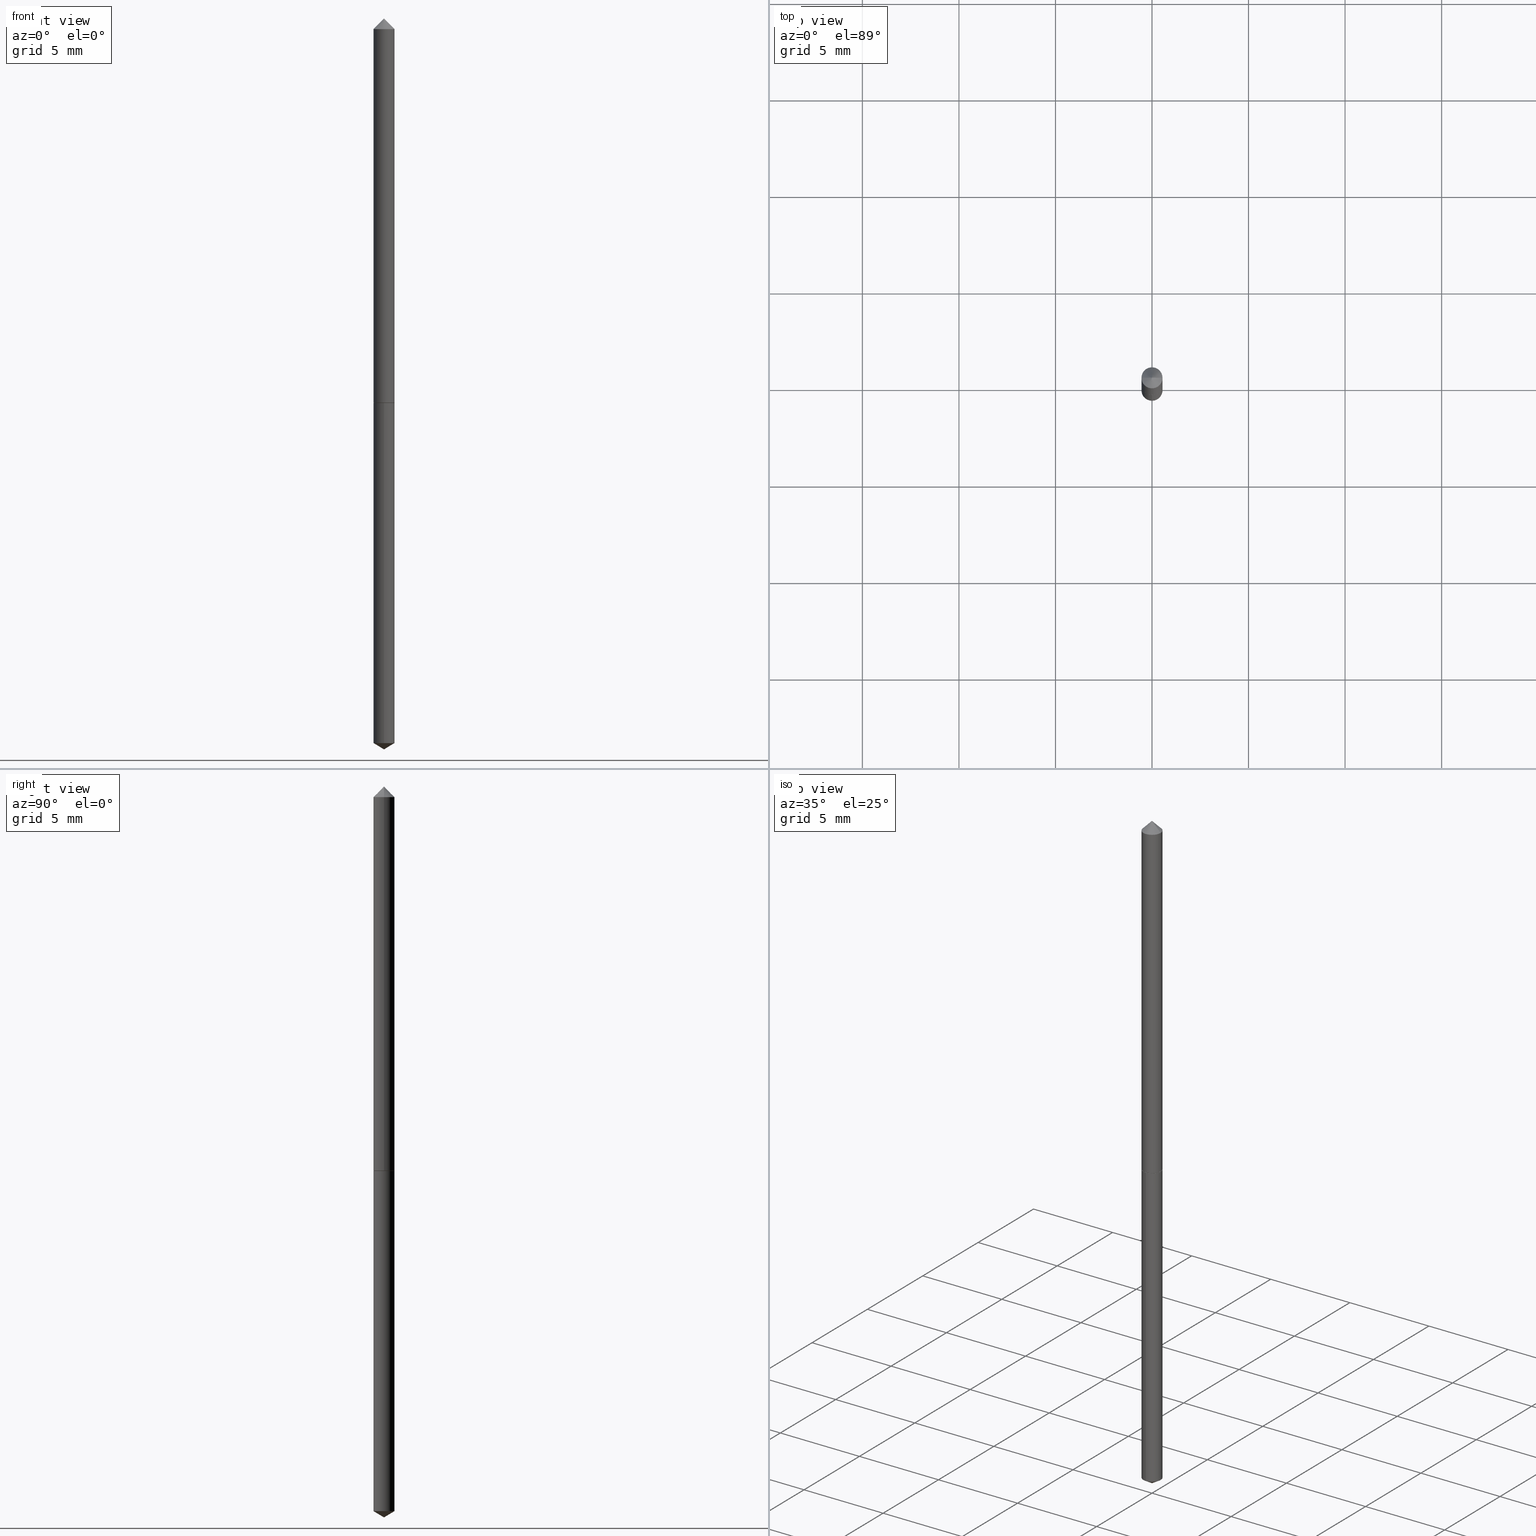
[diagram: canonical four-view strip — front | top / right | iso, engineering-drawing reading convention]
A machine part, canonical four-view strip (front | top / right | iso — engineering-drawing reading convention). The complete STEP part file that produces these views, byte-faithful:
ISO-10303-21;
HEADER;
FILE_DESCRIPTION (( 'STEP AP203' ),
    '1' );
FILE_NAME ('51057.STEP',
    '2024-04-22T18:20:26',
    ( '' ),
    ( '' ),
    'SwSTEP 2.0',
    'SolidWorks 2023',
    '' );
FILE_SCHEMA (( 'CONFIG_CONTROL_DESIGN' ));
ENDSEC;

DATA;
#1 = CONICAL_SURFACE ( 'NONE', #139, 0.02150000000000000522, 0.7853981633974452814 ) ;
#2 = EDGE_LOOP ( 'NONE', ( #50, #119 ) ) ;
#3 = EDGE_CURVE ( 'NONE', #271, #77, #133, .T. ) ;
#4 = ORIENTED_EDGE ( 'NONE', *, *, #278, .T. ) ;
#5 = DIRECTION ( 'NONE',  ( 1.000000000000000000, -6.982962677686265922E-15, 4.876176775795935232E-29 ) ) ;
#6 = CIRCLE ( 'NONE', #63, 0.02150000000000000175 ) ;
#7 = FACE_OUTER_BOUND ( 'NONE', #18, .T. ) ;
#8 = ADVANCED_FACE ( 'NONE', ( #86 ), #116, .T. ) ;
#9 = DIRECTION ( 'NONE',  ( 2.445468806185136597E-29, -3.491481338843145583E-15, -1.000000000000000000 ) ) ;
#10 = CARTESIAN_POINT ( 'NONE',  ( 1.938034028901720955E-29, -2.766998961033193203E-15, -0.7925000000000000933 ) ) ;
#11 = VECTOR ( 'NONE', #30, 39.37007874015748143 ) ;
#12 = CARTESIAN_POINT ( 'NONE',  ( 7.642090019328602662E-31, -1.091087918388490267E-16, -0.03125000000000020817 ) ) ;
#13 = CARTESIAN_POINT ( 'NONE',  ( 0.02150000000000005726, -1.501336975702551248E-16, 1.048378006796128830E-30 ) ) ;
#14 = VERTEX_POINT ( 'NONE', #336 ) ;
#15 = DIRECTION ( 'NONE',  ( -6.982962677686265922E-15, -1.000000000000000000, 0.000000000000000000 ) ) ;
#16 = AXIS2_PLACEMENT_3D ( 'NONE', #291, #183, #155 ) ;
#17 = DIRECTION ( 'NONE',  ( 0.7071067811865453523, -7.319954787623248157E-15, -0.7071067811865496822 ) ) ;
#18 = EDGE_LOOP ( 'NONE', ( #29, #355, #203 ) ) ;
#19 = AXIS2_PLACEMENT_3D ( 'NONE', #265, #295, #204 ) ;
#20 = APPROVAL_ROLE ( '' ) ;
#21 = DIRECTION ( 'NONE',  ( -2.445468806185136877E-29, 3.491481338843145188E-15, 1.000000000000000000 ) ) ;
#22 = EDGE_CURVE ( 'NONE', #14, #172, #62, .T. ) ;
#23 = SECURITY_CLASSIFICATION_LEVEL ( 'unclassified' ) ;
#24 = EDGE_LOOP ( 'NONE', ( #44, #202, #257, #282 ) ) ;
#25 = PERSON_AND_ORGANIZATION_ROLE ( 'creator' ) ;
#26 = ORIENTED_EDGE ( 'NONE', *, *, #66, .T. ) ;
#27 =( GEOMETRIC_REPRESENTATION_CONTEXT ( 3 ) GLOBAL_UNCERTAINTY_ASSIGNED_CONTEXT ( ( #356 ) ) GLOBAL_UNIT_ASSIGNED_CONTEXT ( ( #190, #217, #162 ) ) REPRESENTATION_CONTEXT ( 'NONE', 'WORKASPACE' ) );
#28 = CC_DESIGN_APPROVAL ( #345, ( #314 ) ) ;
#29 = ORIENTED_EDGE ( 'NONE', *, *, #290, .F. ) ;
#30 = DIRECTION ( 'NONE',  ( -0.7071067811866471597, 7.493145998870713881E-15, 0.7071067811864479857 ) ) ;
#31 = DIRECTION ( 'NONE',  ( 1.000000000000000000, -6.982962677686276966E-15, 0.000000000000000000 ) ) ;
#32 = EDGE_CURVE ( 'NONE', #334, #247, #340, .T. ) ;
#33 = AXIS2_PLACEMENT_3D ( 'NONE', #236, #349, #184 ) ;
#34 = CARTESIAN_POINT ( 'NONE',  ( 5.541061362502329399E-29, 2.389244486334888463E-15, -0.7930000000000000382 ) ) ;
#35 = CARTESIAN_POINT ( 'NONE',  ( -9.261350798568997351E-28, 1.322177874175488400E-13, 37.87007874015748143 ) ) ;
#36 = FACE_OUTER_BOUND ( 'NONE', #326, .T. ) ;
#37 = EDGE_CURVE ( 'NONE', #172, #70, #177, .T. ) ;
#38 = DIRECTION ( 'NONE',  ( -0.7071067811865453523, 2.468850131082234184E-15, -0.7071067811865496822 ) ) ;
#39 = DIRECTION ( 'NONE',  ( -2.445557048998981486E-29, 3.491354970111250407E-15, 1.000000000000000000 ) ) ;
#40 = MANIFOLD_SOLID_BREP ( 'Body-Move/Copy2[1]', #101 ) ;
#41 = DIRECTION ( 'NONE',  ( -6.982962677686265922E-15, -1.000000000000000000, 6.353134868986658336E-15 ) ) ;
#42 = ADVANCED_FACE ( 'NONE', ( #310 ), #147, .T. ) ;
#43 = CIRCLE ( 'NONE', #19, 0.02150000000000000522 ) ;
#44 = ORIENTED_EDGE ( 'NONE', *, *, #47, .F. ) ;
#45 = DIRECTION ( 'NONE',  ( -2.445468806185136877E-29, 3.491481338843145188E-15, 1.000000000000000000 ) ) ;
#46 = APPROVAL_DATE_TIME ( #87, #345 ) ;
#47 = EDGE_CURVE ( 'NONE', #14, #334, #288, .T. ) ;
#48 = CALENDAR_DATE ( 2024, 22, 4 ) ;
#49 = AXIS2_PLACEMENT_3D ( 'NONE', #318, #98, #124 ) ;
#50 = ORIENTED_EDGE ( 'NONE', *, *, #307, .F. ) ;
#51 = LOCAL_TIME ( 14, 20, 26.00000000000000000, #52 ) ;
#52 = COORDINATED_UNIVERSAL_TIME_OFFSET ( 5, 0, .BEHIND. ) ;
#53 = ORIENTED_EDGE ( 'NONE', *, *, #307, .T. ) ;
#54 = ORIENTED_EDGE ( 'NONE', *, *, #143, .F. ) ;
#55 = ADVANCED_FACE ( 'NONE', ( #113 ), #293, .T. ) ;
#56 = PERSON_AND_ORGANIZATION ( #252, #251 ) ;
#57 = DIRECTION ( 'NONE',  ( -2.445557048998981486E-29, 3.491354970111250407E-15, 1.000000000000000000 ) ) ;
#58 = VECTOR ( 'NONE', #275, 39.37007874015748143 ) ;
#59 = CARTESIAN_POINT ( 'NONE',  ( -0.02150000000000010236, -2.614232272844770738E-15, -0.7925000000000000933 ) ) ;
#60 = CARTESIAN_POINT ( 'NONE',  ( 7.642090019328602662E-31, -1.091087918388490267E-16, -0.03125000000000020817 ) ) ;
#61 = FACE_OUTER_BOUND ( 'NONE', #2, .T. ) ;
#62 = CIRCLE ( 'NONE', #319, 0.02100000000000006375 ) ;
#63 = AXIS2_PLACEMENT_3D ( 'NONE', #188, #74, #41 ) ;
#64 = CARTESIAN_POINT ( 'NONE',  ( 3.636672660117026275E-29, -5.192029584836672026E-15, -1.487081496690907834 ) ) ;
#65 = DIRECTION ( 'NONE',  ( -6.982962677686265922E-15, -1.000000000000000000, 0.000000000000000000 ) ) ;
#66 = EDGE_CURVE ( 'NONE', #88, #312, #266, .T. ) ;
#67 = CYLINDRICAL_SURFACE ( 'NONE', #313, 0.02150000000000005726 ) ;
#68 = CLOSED_SHELL ( 'NONE', ( #8, #330, #302, #272, #150, #243, #97 ) ) ;
#69 = CARTESIAN_POINT ( 'NONE',  ( 0.000000000000000000, 0.000000000000000000, 0.000000000000000000 ) ) ;
#70 = VERTEX_POINT ( 'NONE', #151 ) ;
#71 = CC_DESIGN_PERSON_AND_ORGANIZATION_ASSIGNMENT ( #359, #199, ( #314 ) ) ;
#72 = DIRECTION ( 'NONE',  ( 0.000000000000000000, 0.000000000000000000, 1.000000000000000000 ) ) ;
#73 = DESIGN_CONTEXT ( 'detailed design', #320, 'design' ) ;
#74 = DIRECTION ( 'NONE',  ( -2.445557048998981486E-29, 3.491354970111250407E-15, 1.000000000000000000 ) ) ;
#75 = DIRECTION ( 'NONE',  ( -2.445468806185136597E-29, 3.491481338843145583E-15, 1.000000000000000000 ) ) ;
#76 = CIRCLE ( 'NONE', #182, 0.02150000000000000175 ) ;
#77 = VERTEX_POINT ( 'NONE', #130 ) ;
#78 = LENGTH_MEASURE_WITH_UNIT ( LENGTH_MEASURE( 0.02539999999999999897 ), #106 );
#79 = ORIENTED_EDGE ( 'NONE', *, *, #283, .T. ) ;
#80 = EDGE_CURVE ( 'NONE', #88, #223, #152, .T. ) ;
#81 = CALENDAR_DATE ( 2024, 22, 4 ) ;
#82 = ORIENTED_EDGE ( 'NONE', *, *, #205, .T. ) ;
#83 = AXIS2_PLACEMENT_3D ( 'NONE', #69, #72, #248 ) ;
#84 = EDGE_LOOP ( 'NONE', ( #53, #276, #218, #353 ) ) ;
#85 = CARTESIAN_POINT ( 'NONE',  ( 1.939256763304813196E-29, -2.768744701702614312E-15, -0.7930000000000000382 ) ) ;
#86 = FACE_OUTER_BOUND ( 'NONE', #138, .T. ) ;
#87 = DATE_AND_TIME ( #81, #51 ) ;
#88 = VERTEX_POINT ( 'NONE', #125 ) ;
#89 = AXIS2_PLACEMENT_3D ( 'NONE', #35, #127, #209 ) ;
#90 = DIRECTION ( 'NONE',  ( -1.000000000000000000, 6.982962677686265922E-15, 0.000000000000000000 ) ) ;
#91 = CC_DESIGN_DATE_AND_TIME_ASSIGNMENT ( #222, #253, ( #126 ) ) ;
#92 = DIRECTION ( 'NONE',  ( -2.445557048998981766E-29, 3.491354970111250407E-15, 1.000000000000000000 ) ) ;
#93 = DIRECTION ( 'NONE',  ( -2.445468806185136597E-29, 3.491481338843145583E-15, 1.000000000000000000 ) ) ;
#94 = LOCAL_TIME ( 14, 20, 26.00000000000000000, #120 ) ;
#95 = PRODUCT ( '51057', '51057', '', ( #131 ) ) ;
#96 = LINE ( 'NONE', #322, #342 ) ;
#97 = ADVANCED_FACE ( 'NONE', ( #7 ), #1, .T. ) ;
#98 = DIRECTION ( 'NONE',  ( -2.445468806185136597E-29, 3.491481338843145583E-15, 1.000000000000000000 ) ) ;
#99 = CARTESIAN_POINT ( 'NONE',  ( 1.938034028901720955E-29, -2.766998961033193203E-15, -0.7925000000000000933 ) ) ;
#100 = EDGE_LOOP ( 'NONE', ( #148, #26, #212 ) ) ;
#101 = CLOSED_SHELL ( 'NONE', ( #333, #42, #111, #55, #136 ) ) ;
#102 = CC_DESIGN_DATE_AND_TIME_ASSIGNMENT ( #165, #258, ( #314 ) ) ;
#103 = AXIS2_PLACEMENT_3D ( 'NONE', #34, #207, #321 ) ;
#104 = DIRECTION ( 'NONE',  ( 1.000000000000000000, -6.982962677686265922E-15, 4.876176775795935232E-29 ) ) ;
#105 = EDGE_LOOP ( 'NONE', ( #197, #4, #338, #168 ) ) ;
#106 =( LENGTH_UNIT ( ) NAMED_UNIT ( * ) SI_UNIT ( $, .METRE. ) );
#107 = APPLICATION_PROTOCOL_DEFINITION ( 'international standard', 'config_control_design', 1994, #178 ) ;
#108 = CIRCLE ( 'NONE', #129, 0.02150000000000000175 ) ;
#109 = LINE ( 'NONE', #273, #347 ) ;
#110 = CC_DESIGN_APPROVAL ( #361, ( #193 ) ) ;
#111 = ADVANCED_FACE ( 'NONE', ( #36 ), #208, .T. ) ;
#112 = DATE_AND_TIME ( #337, #134 ) ;
#113 = FACE_OUTER_BOUND ( 'NONE', #105, .T. ) ;
#114 = CALENDAR_DATE ( 2024, 22, 4 ) ;
#115 = VERTEX_POINT ( 'NONE', #346 ) ;
#116 = CONICAL_SURFACE ( 'NONE', #328, 0.02150000000000000522, 0.7853981633974452814 ) ;
#117 = CARTESIAN_POINT ( 'NONE',  ( 7.642090019328602662E-31, -1.091087918388490267E-16, -0.03125000000000020817 ) ) ;
#118 = PERSON_AND_ORGANIZATION ( #252, #251 ) ;
#119 = ORIENTED_EDGE ( 'NONE', *, *, #22, .F. ) ;
#120 = COORDINATED_UNIVERSAL_TIME_OFFSET ( 5, 0, .BEHIND. ) ;
#121 = DIRECTION ( 'NONE',  ( -2.445468806185136597E-29, 3.491481338843145583E-15, 1.000000000000000000 ) ) ;
#122 = CARTESIAN_POINT ( 'NONE',  ( -0.02150000000000000522, -1.285287188247597701E-15, -0.03125000000000020817 ) ) ;
#123 = CC_DESIGN_PERSON_AND_ORGANIZATION_ASSIGNMENT ( #118, #303, ( #95 ) ) ;
#124 = DIRECTION ( 'NONE',  ( 1.000000000000000000, -6.982962677686276966E-15, 0.000000000000000000 ) ) ;
#125 = CARTESIAN_POINT ( 'NONE',  ( 3.668335573498472369E-29, -5.237032455166875807E-15, -1.500000000000000222 ) ) ;
#126 = PRODUCT_DEFINITION ( 'UNKNOWN', '', #193, #73 ) ;
#127 = DIRECTION ( 'NONE',  ( -2.445557048998981486E-29, 3.491354970111250407E-15, 1.000000000000000000 ) ) ;
#128 = CIRCLE ( 'NONE', #198, 0.02150000000000010236 ) ;
#129 = AXIS2_PLACEMENT_3D ( 'NONE', #263, #157, #65 ) ;
#130 = CARTESIAN_POINT ( 'NONE',  ( -1.501336975702353539E-16, -0.02150000000000277037, -0.7930000000000000382 ) ) ;
#131 = MECHANICAL_CONTEXT ( 'NONE', #178, 'mechanical' ) ;
#132 = DIMENSIONAL_EXPONENTS ( 1.000000000000000000, 0.000000000000000000, 0.000000000000000000, 0.000000000000000000, 0.000000000000000000, 0.000000000000000000, 0.000000000000000000 ) ;
#133 = CIRCLE ( 'NONE', #153, 0.02150000000000000175 ) ;
#134 = LOCAL_TIME ( 14, 20, 26.00000000000000000, #146 ) ;
#135 = CYLINDRICAL_SURFACE ( 'NONE', #174, 0.02150000000000005726 ) ;
#136 = ADVANCED_FACE ( 'NONE', ( #317 ), #267, .F. ) ;
#137 = FACE_OUTER_BOUND ( 'NONE', #308, .T. ) ;
#138 = EDGE_LOOP ( 'NONE', ( #170, #200, #189 ) ) ;
#139 = AXIS2_PLACEMENT_3D ( 'NONE', #12, #9, #90 ) ;
#140 = APPLICATION_PROTOCOL_DEFINITION ( 'international standard', 'config_control_design', 1994, #320 ) ;
#141 = ORIENTED_EDGE ( 'NONE', *, *, #3, .T. ) ;
#142 = CARTESIAN_POINT ( 'NONE',  ( 0.02150000000000010236, -2.917132658603448820E-15, -0.7925000000000000933 ) ) ;
#143 = EDGE_CURVE ( 'NONE', #247, #115, #269, .T. ) ;
#144 = PERSON_AND_ORGANIZATION ( #252, #251 ) ;
#145 = ORIENTED_EDGE ( 'NONE', *, *, #192, .F. ) ;
#146 = COORDINATED_UNIVERSAL_TIME_OFFSET ( 5, 0, .BEHIND. ) ;
#147 = CONICAL_SURFACE ( 'NONE', #246, 65.52281426577032164, 1.029744258676667190 ) ;
#148 = ORIENTED_EDGE ( 'NONE', *, *, #80, .F. ) ;
#149 = ORIENTED_EDGE ( 'NONE', *, *, #327, .T. ) ;
#150 = ADVANCED_FACE ( 'NONE', ( #351 ), #354, .T. ) ;
#151 = CARTESIAN_POINT ( 'NONE',  ( 0.02150000000000010236, -2.917132658603448820E-15, -0.7925000000000000933 ) ) ;
#152 = LINE ( 'NONE', #238, #240 ) ;
#153 = AXIS2_PLACEMENT_3D ( 'NONE', #364, #230, #220 ) ;
#154 = AXIS2_PLACEMENT_3D ( 'NONE', #358, #39, #211 ) ;
#155 = DIRECTION ( 'NONE',  ( -6.982962677686265922E-15, -1.000000000000000000, 6.353134868986658336E-15 ) ) ;
#156 = DIRECTION ( 'NONE',  ( -5.985567269335988611E-15, -0.8571673007021169965, 0.5150380749100462729 ) ) ;
#157 = DIRECTION ( 'NONE',  ( -2.445557048998981486E-29, 3.491354970111250407E-15, 1.000000000000000000 ) ) ;
#158 = AXIS2_PLACEMENT_3D ( 'NONE', #161, #75, #215 ) ;
#159 = FACE_OUTER_BOUND ( 'NONE', #84, .T. ) ;
#160 = DIRECTION ( 'NONE',  ( -2.445557048998981486E-29, 3.491354970111250407E-15, 1.000000000000000000 ) ) ;
#161 = CARTESIAN_POINT ( 'NONE',  ( 1.939256763304813196E-29, -2.768744701702614312E-15, -0.7930000000000000382 ) ) ;
#162 =( NAMED_UNIT ( * ) SI_UNIT ( $, .STERADIAN. ) SOLID_ANGLE_UNIT ( ) );
#163 = ORIENTED_EDGE ( 'NONE', *, *, #255, .T. ) ;
#164 = MANIFOLD_SOLID_BREP ( 'Body-Move/Copy2[2]', #68 ) ;
#165 = DATE_AND_TIME ( #114, #232 ) ;
#166 = CIRCLE ( 'NONE', #49, 0.02150000000000010236 ) ;
#167 = CC_DESIGN_PERSON_AND_ORGANIZATION_ASSIGNMENT ( #229, #284, ( #193 ) ) ;
#168 = ORIENTED_EDGE ( 'NONE', *, *, #3, .F. ) ;
#169 = APPROVAL_STATUS ( 'not_yet_approved' ) ;
#170 = ORIENTED_EDGE ( 'NONE', *, *, #316, .F. ) ;
#171 = PERSON_AND_ORGANIZATION ( #252, #251 ) ;
#172 = VERTEX_POINT ( 'NONE', #210 ) ;
#173 = COORDINATED_UNIVERSAL_TIME_OFFSET ( 5, 0, .BEHIND. ) ;
#174 = AXIS2_PLACEMENT_3D ( 'NONE', #301, #213, #104 ) ;
#175 = APPROVAL_PERSON_ORGANIZATION ( #56, #361, #20 ) ;
#176 = DIRECTION ( 'NONE',  ( -6.982962677686265922E-15, -1.000000000000000000, 3.468864327941494029E-15 ) ) ;
#177 = LINE ( 'NONE', #142, #237 ) ;
#178 = APPLICATION_CONTEXT ( 'configuration controlled 3d designs of mechanical parts and assemblies' ) ;
#179 = DIRECTION ( 'NONE',  ( -2.445468806185136597E-29, 3.491481338843145583E-15, 1.000000000000000000 ) ) ;
#180 = PLANE ( 'NONE',  #103 ) ;
#181 = EDGE_CURVE ( 'NONE', #223, #77, #96, .T. ) ;
#182 = AXIS2_PLACEMENT_3D ( 'NONE', #64, #160, #15 ) ;
#183 = DIRECTION ( 'NONE',  ( -2.445557048998981486E-29, 3.491354970111250407E-15, 1.000000000000000000 ) ) ;
#184 = DIRECTION ( 'NONE',  ( 6.982962677686265922E-15, 1.000000000000000000, -3.491354970111250407E-15 ) ) ;
#185 = CARTESIAN_POINT ( 'NONE',  ( 0.000000000000000000, 0.000000000000000000, 0.000000000000000000 ) ) ;
#186 = AXIS2_PLACEMENT_3D ( 'NONE', #10, #179, #31 ) ;
#187 = EDGE_CURVE ( 'NONE', #223, #312, #108, .T. ) ;
#188 = CARTESIAN_POINT ( 'NONE',  ( 1.939256763304813756E-29, -2.768744701702615101E-15, -0.7930000000000001492 ) ) ;
#189 = ORIENTED_EDGE ( 'NONE', *, *, #192, .T. ) ;
#190 =( CONVERSION_BASED_UNIT ( 'INCH', #78 ) LENGTH_UNIT ( ) NAMED_UNIT ( #132 ) );
#191 = ORIENTED_EDGE ( 'NONE', *, *, #341, .T. ) ;
#192 = EDGE_CURVE ( 'NONE', #115, #247, #43, .T. ) ;
#193 = PRODUCT_DEFINITION_FORMATION_WITH_SPECIFIED_SOURCE ( 'ANY', '', #95, .NOT_KNOWN. ) ;
#194 = CARTESIAN_POINT ( 'NONE',  ( 1.527666881884409041E-16, 0.02149999999999722966, -0.7930000000000002602 ) ) ;
#195 = CARTESIAN_POINT ( 'NONE',  ( -0.02150000000000010236, -2.614232272844770738E-15, -0.7925000000000000933 ) ) ;
#196 = ORIENTED_EDGE ( 'NONE', *, *, #66, .F. ) ;
#197 = ORIENTED_EDGE ( 'NONE', *, *, #283, .F. ) ;
#198 = AXIS2_PLACEMENT_3D ( 'NONE', #343, #93, #344 ) ;
#199 = PERSON_AND_ORGANIZATION_ROLE ( 'classification_officer' ) ;
#200 = ORIENTED_EDGE ( 'NONE', *, *, #290, .T. ) ;
#201 = CARTESIAN_POINT ( 'NONE',  ( -0.02150000000000005726, 1.527666881884219468E-16, -1.057571044404807502E-30 ) ) ;
#202 = ORIENTED_EDGE ( 'NONE', *, *, #22, .T. ) ;
#203 = ORIENTED_EDGE ( 'NONE', *, *, #143, .T. ) ;
#204 = DIRECTION ( 'NONE',  ( 1.000000000000000000, -6.982962677686265922E-15, 0.000000000000000000 ) ) ;
#205 = EDGE_CURVE ( 'NONE', #70, #334, #166, .T. ) ;
#206 = CARTESIAN_POINT ( 'NONE',  ( 1.527666881884579879E-16, 0.02149999999999722966, -0.7930000000000002602 ) ) ;
#207 = DIRECTION ( 'NONE',  ( -2.438088387897960049E-29, 3.491481338843145188E-15, 1.000000000000000000 ) ) ;
#208 = CONICAL_SURFACE ( 'NONE', #89, 65.52281426577032164, 1.029744258676667190 ) ;
#209 = DIRECTION ( 'NONE',  ( -6.982962677686265922E-15, -1.000000000000000000, 3.468864327941494029E-15 ) ) ;
#210 = CARTESIAN_POINT ( 'NONE',  ( 0.02100000000000006375, -2.915386917934026528E-15, -0.7930000000000000382 ) ) ;
#211 = DIRECTION ( 'NONE',  ( -6.982962677686265922E-15, -1.000000000000000000, 6.353134868986658336E-15 ) ) ;
#212 = ORIENTED_EDGE ( 'NONE', *, *, #187, .F. ) ;
#213 = DIRECTION ( 'NONE',  ( -2.445468806185136597E-29, 3.491481338843145583E-15, 1.000000000000000000 ) ) ;
#214 = PRODUCT_RELATED_PRODUCT_CATEGORY ( 'detail', '', ( #95 ) ) ;
#215 = DIRECTION ( 'NONE',  ( 1.000000000000000000, -6.982962677686265133E-15, 0.000000000000000000 ) ) ;
#216 = CARTESIAN_POINT ( 'NONE',  ( 1.527666881884579139E-16, 0.02149999999999481493, -1.487081496690907834 ) ) ;
#217 =( NAMED_UNIT ( * ) PLANE_ANGLE_UNIT ( ) SI_UNIT ( $, .RADIAN. ) );
#218 = ORIENTED_EDGE ( 'NONE', *, *, #205, .F. ) ;
#219 = APPROVAL_DATE_TIME ( #112, #221 ) ;
#220 = DIRECTION ( 'NONE',  ( -6.982962677686265922E-15, -1.000000000000000000, 6.353134868986658336E-15 ) ) ;
#221 = APPROVAL ( #309, 'UNSPECIFIED' ) ;
#222 = DATE_AND_TIME ( #311, #94 ) ;
#223 = VERTEX_POINT ( 'NONE', #323 ) ;
#224 = VECTOR ( 'NONE', #233, 39.37007874015748143 ) ;
#225 = APPROVAL_PERSON_ORGANIZATION ( #331, #345, #286 ) ;
#226 = DIRECTION ( 'NONE',  ( 2.445468806185136597E-29, -3.491481338843145583E-15, -1.000000000000000000 ) ) ;
#227 = APPROVAL_STATUS ( 'not_yet_approved' ) ;
#228 = ORIENTED_EDGE ( 'NONE', *, *, #32, .T. ) ;
#229 = PERSON_AND_ORGANIZATION ( #252, #251 ) ;
#230 = DIRECTION ( 'NONE',  ( -2.445557048998981486E-29, 3.491354970111250407E-15, 1.000000000000000000 ) ) ;
#231 = VECTOR ( 'NONE', #17, 39.37007874015748143 ) ;
#232 = LOCAL_TIME ( 14, 20, 26.00000000000000000, #173 ) ;
#233 = DIRECTION ( 'NONE',  ( 6.090539988449826556E-15, 0.8571673007021206603, 0.5150380749100402777 ) ) ;
#234 = CC_DESIGN_PERSON_AND_ORGANIZATION_ASSIGNMENT ( #171, #339, ( #193 ) ) ;
#235 = FACE_OUTER_BOUND ( 'NONE', #285, .T. ) ;
#236 = CARTESIAN_POINT ( 'NONE',  ( 1.939256763304813756E-29, -2.768744701702615101E-15, -0.7930000000000001492 ) ) ;
#237 = VECTOR ( 'NONE', #289, 39.37007874015748143 ) ;
#238 = CARTESIAN_POINT ( 'NONE',  ( 3.668195620395714927E-29, -5.237232875975661965E-15, -1.500000000000000222 ) ) ;
#239 = VECTOR ( 'NONE', #21, 39.37007874015748143 ) ;
#240 = VECTOR ( 'NONE', #156, 39.37007874015748143 ) ;
#241 = PRODUCT_DEFINITION_SHAPE ( 'NONE', 'NONE',  #126 ) ;
#242 = DIRECTION ( 'NONE',  ( -2.445468806185136597E-29, 3.491481338843145583E-15, 1.000000000000000000 ) ) ;
#243 = ADVANCED_FACE ( 'NONE', ( #235 ), #67, .T. ) ;
#244 = DIRECTION ( 'NONE',  ( 1.000000000000000000, -6.982962677686276966E-15, 0.000000000000000000 ) ) ;
#245 = LINE ( 'NONE', #194, #58 ) ;
#246 = AXIS2_PLACEMENT_3D ( 'NONE', #315, #57, #176 ) ;
#247 = VERTEX_POINT ( 'NONE', #122 ) ;
#248 = DIRECTION ( 'NONE',  ( 1.000000000000000000, 0.000000000000000000, 0.000000000000000000 ) ) ;
#249 = FACE_OUTER_BOUND ( 'NONE', #254, .T. ) ;
#250 = ORIENTED_EDGE ( 'NONE', *, *, #32, .F. ) ;
#251 = ORGANIZATION ( 'UNSPECIFIED', 'UNSPECIFIED', '' ) ;
#252 = PERSON ( 'UNSPECIFIED', 'UNSPECIFIED', 'UNSPECIFIED', ('UNSPECIFIED'), ('UNSPECIFIED'), ('UNSPECIFIED') ) ;
#253 = DATE_TIME_ROLE ( 'creation_date' ) ;
#254 = EDGE_LOOP ( 'NONE', ( #259, #79, #363, #360 ) ) ;
#255 = EDGE_CURVE ( 'NONE', #334, #70, #128, .T. ) ;
#256 = PERSON_AND_ORGANIZATION ( #252, #251 ) ;
#257 = ORIENTED_EDGE ( 'NONE', *, *, #37, .T. ) ;
#258 = DATE_TIME_ROLE ( 'classification_date' ) ;
#259 = ORIENTED_EDGE ( 'NONE', *, *, #187, .T. ) ;
#260 = APPROVAL_DATE_TIME ( #304, #361 ) ;
#261 = ORIENTED_EDGE ( 'NONE', *, *, #80, .T. ) ;
#262 = EDGE_LOOP ( 'NONE', ( #149, #141 ) ) ;
#263 = CARTESIAN_POINT ( 'NONE',  ( 3.636672660117026275E-29, -5.192029584836672026E-15, -1.487081496690907834 ) ) ;
#264 = AXIS2_PLACEMENT_3D ( 'NONE', #99, #277, #244 ) ;
#265 = CARTESIAN_POINT ( 'NONE',  ( 7.642090019328602662E-31, -1.091087918388490267E-16, -0.03125000000000020817 ) ) ;
#266 = LINE ( 'NONE', #294, #224 ) ;
#267 = PLANE ( 'NONE',  #33 ) ;
#268 = DIRECTION ( 'NONE',  ( 1.000000000000000000, -6.982962677686265922E-15, 0.000000000000000000 ) ) ;
#269 = CIRCLE ( 'NONE', #325, 0.02150000000000000522 ) ;
#270 = CYLINDRICAL_SURFACE ( 'NONE', #154, 0.02150000000000000175 ) ;
#271 = VERTEX_POINT ( 'NONE', #206 ) ;
#272 = ADVANCED_FACE ( 'NONE', ( #61 ), #180, .F. ) ;
#273 = CARTESIAN_POINT ( 'NONE',  ( -0.02150000000000000522, 4.102490573140573446E-17, -0.03125000000000020817 ) ) ;
#274 = CC_DESIGN_APPROVAL ( #221, ( #126 ) ) ;
#275 = DIRECTION ( 'NONE',  ( -2.445557048998981766E-29, 3.491354970111250407E-15, 1.000000000000000000 ) ) ;
#276 = ORIENTED_EDGE ( 'NONE', *, *, #47, .T. ) ;
#277 = DIRECTION ( 'NONE',  ( -2.445468806185136597E-29, 3.491481338843145583E-15, 1.000000000000000000 ) ) ;
#278 = EDGE_CURVE ( 'NONE', #312, #223, #76, .T. ) ;
#279 = CIRCLE ( 'NONE', #158, 0.02100000000000006375 ) ;
#280 = DIRECTION ( 'NONE',  ( 1.000000000000000000, -6.982962677686265133E-15, 0.000000000000000000 ) ) ;
#281 = APPROVAL_ROLE ( '' ) ;
#282 = ORIENTED_EDGE ( 'NONE', *, *, #255, .F. ) ;
#283 = EDGE_CURVE ( 'NONE', #312, #271, #245, .T. ) ;
#284 = PERSON_AND_ORGANIZATION_ROLE ( 'design_supplier' ) ;
#285 = EDGE_LOOP ( 'NONE', ( #250, #163, #191, #54 ) ) ;
#286 = APPROVAL_ROLE ( '' ) ;
#287 = CC_DESIGN_SECURITY_CLASSIFICATION ( #314, ( #193 ) ) ;
#288 = LINE ( 'NONE', #59, #11 ) ;
#289 = DIRECTION ( 'NONE',  ( 0.7071067811866471597, -2.468850131083299935E-15, 0.7071067811864479857 ) ) ;
#290 = EDGE_CURVE ( 'NONE', #299, #115, #352, .T. ) ;
#291 = CARTESIAN_POINT ( 'NONE',  ( 1.939256763304813756E-29, -2.768744701702615101E-15, -0.7930000000000001492 ) ) ;
#292 = APPROVAL_PERSON_ORGANIZATION ( #144, #221, #281 ) ;
#293 = CYLINDRICAL_SURFACE ( 'NONE', #16, 0.02150000000000000175 ) ;
#294 = CARTESIAN_POINT ( 'NONE',  ( 3.668336800721982452E-29, -5.237032455166875807E-15, -1.500000000000000222 ) ) ;
#295 = DIRECTION ( 'NONE',  ( -2.445468806185136597E-29, 3.491481338843145583E-15, 1.000000000000000000 ) ) ;
#296 = DIRECTION ( 'NONE',  ( -2.445468806185136597E-29, 3.491481338843145583E-15, 1.000000000000000000 ) ) ;
#297 = CC_DESIGN_PERSON_AND_ORGANIZATION_ASSIGNMENT ( #256, #25, ( #126 ) ) ;
#298 = CARTESIAN_POINT ( 'NONE',  ( 2.347073506771012975E-31, -3.457550711498345681E-17, -0.009750000000000065906 ) ) ;
#299 = VERTEX_POINT ( 'NONE', #298 ) ;
#300 = CONICAL_SURFACE ( 'NONE', #264, 0.02150000000000010236, 0.7853981633975891663 ) ;
#301 = CARTESIAN_POINT ( 'NONE',  ( 0.000000000000000000, 0.000000000000000000, 0.000000000000000000 ) ) ;
#302 = ADVANCED_FACE ( 'NONE', ( #159 ), #300, .T. ) ;
#303 = PERSON_AND_ORGANIZATION_ROLE ( 'design_owner' ) ;
#304 = DATE_AND_TIME ( #48, #348 ) ;
#305 = DIRECTION ( 'NONE',  ( -1.000000000000000000, 6.982962677686265922E-15, 0.000000000000000000 ) ) ;
#306 = SHAPE_DEFINITION_REPRESENTATION ( #241, #350 ) ;
#307 = EDGE_CURVE ( 'NONE', #172, #14, #279, .T. ) ;
#308 = EDGE_LOOP ( 'NONE', ( #82, #228, #145, #332 ) ) ;
#309 = APPROVAL_STATUS ( 'not_yet_approved' ) ;
#310 = FACE_OUTER_BOUND ( 'NONE', #100, .T. ) ;
#311 = CALENDAR_DATE ( 2024, 22, 4 ) ;
#312 = VERTEX_POINT ( 'NONE', #216 ) ;
#313 = AXIS2_PLACEMENT_3D ( 'NONE', #185, #296, #5 ) ;
#314 = SECURITY_CLASSIFICATION ( '', '', #23 ) ;
#315 = CARTESIAN_POINT ( 'NONE',  ( -9.261350798568997351E-28, 1.322177874175488400E-13, 37.87007874015748143 ) ) ;
#316 = EDGE_CURVE ( 'NONE', #299, #247, #109, .T. ) ;
#317 = FACE_OUTER_BOUND ( 'NONE', #262, .T. ) ;
#318 = CARTESIAN_POINT ( 'NONE',  ( 1.938034028901720955E-29, -2.766998961033193203E-15, -0.7925000000000000933 ) ) ;
#319 = AXIS2_PLACEMENT_3D ( 'NONE', #85, #121, #280 ) ;
#320 = APPLICATION_CONTEXT ( 'configuration controlled 3d designs of mechanical parts and assemblies' ) ;
#321 = DIRECTION ( 'NONE',  ( 1.000000000000000000, -6.982962677686265922E-15, 4.876176775795935793E-29 ) ) ;
#322 = CARTESIAN_POINT ( 'NONE',  ( -1.501336975702353539E-16, -0.02150000000000277037, -0.7930000000000000382 ) ) ;
#323 = CARTESIAN_POINT ( 'NONE',  ( -1.501336975702183934E-16, -0.02150000000000519898, -1.487081496690907834 ) ) ;
#324 = LINE ( 'NONE', #13, #335 ) ;
#325 = AXIS2_PLACEMENT_3D ( 'NONE', #60, #242, #268 ) ;
#326 = EDGE_LOOP ( 'NONE', ( #196, #261, #329 ) ) ;
#327 = EDGE_CURVE ( 'NONE', #77, #271, #6, .T. ) ;
#328 = AXIS2_PLACEMENT_3D ( 'NONE', #117, #226, #305 ) ;
#329 = ORIENTED_EDGE ( 'NONE', *, *, #278, .F. ) ;
#330 = ADVANCED_FACE ( 'NONE', ( #137 ), #135, .T. ) ;
#331 = PERSON_AND_ORGANIZATION ( #252, #251 ) ;
#332 = ORIENTED_EDGE ( 'NONE', *, *, #341, .F. ) ;
#333 = ADVANCED_FACE ( 'NONE', ( #249 ), #270, .T. ) ;
#334 = VERTEX_POINT ( 'NONE', #195 ) ;
#335 = VECTOR ( 'NONE', #45, 39.37007874015748143 ) ;
#336 = CARTESIAN_POINT ( 'NONE',  ( -0.02100000000000006375, -2.616881500018881939E-15, -0.7930000000000000382 ) ) ;
#337 = CALENDAR_DATE ( 2024, 22, 4 ) ;
#338 = ORIENTED_EDGE ( 'NONE', *, *, #181, .T. ) ;
#339 = PERSON_AND_ORGANIZATION_ROLE ( 'creator' ) ;
#340 = LINE ( 'NONE', #201, #239 ) ;
#341 = EDGE_CURVE ( 'NONE', #70, #115, #324, .T. ) ;
#342 = VECTOR ( 'NONE', #92, 39.37007874015748143 ) ;
#343 = CARTESIAN_POINT ( 'NONE',  ( 1.938034028901720955E-29, -2.766998961033193203E-15, -0.7925000000000000933 ) ) ;
#344 = DIRECTION ( 'NONE',  ( 1.000000000000000000, -6.982962677686276966E-15, 0.000000000000000000 ) ) ;
#345 = APPROVAL ( #227, 'UNSPECIFIED' ) ;
#346 = CARTESIAN_POINT ( 'NONE',  ( 0.02150000000000000522, -2.592424894091037817E-16, -0.03125000000000020817 ) ) ;
#347 = VECTOR ( 'NONE', #38, 39.37007874015748143 ) ;
#348 = LOCAL_TIME ( 14, 20, 26.00000000000000000, #362 ) ;
#349 = DIRECTION ( 'NONE',  ( 2.445557048998981206E-29, -3.491354970111250407E-15, -1.000000000000000000 ) ) ;
#350 = ADVANCED_BREP_SHAPE_REPRESENTATION ( '51057', ( #40, #164, #83 ), #27 ) ;
#351 = FACE_OUTER_BOUND ( 'NONE', #24, .T. ) ;
#352 = LINE ( 'NONE', #357, #231 ) ;
#353 = ORIENTED_EDGE ( 'NONE', *, *, #37, .F. ) ;
#354 = CONICAL_SURFACE ( 'NONE', #186, 0.02150000000000010236, 0.7853981633975891663 ) ;
#355 = ORIENTED_EDGE ( 'NONE', *, *, #316, .T. ) ;
#356 = UNCERTAINTY_MEASURE_WITH_UNIT (LENGTH_MEASURE( 1.000000000000000082E-05 ), #190, 'distance_accuracy_value', 'NONE');
#357 = CARTESIAN_POINT ( 'NONE',  ( 0.02150000000000000522, -2.566094987909369350E-16, -0.03125000000000020817 ) ) ;
#358 = CARTESIAN_POINT ( 'NONE',  ( 1.939256763304813756E-29, -2.768744701702615101E-15, -0.7930000000000001492 ) ) ;
#359 = PERSON_AND_ORGANIZATION ( #252, #251 ) ;
#360 = ORIENTED_EDGE ( 'NONE', *, *, #181, .F. ) ;
#361 = APPROVAL ( #169, 'UNSPECIFIED' ) ;
#362 = COORDINATED_UNIVERSAL_TIME_OFFSET ( 5, 0, .BEHIND. ) ;
#363 = ORIENTED_EDGE ( 'NONE', *, *, #327, .F. ) ;
#364 = CARTESIAN_POINT ( 'NONE',  ( 1.939256763304813756E-29, -2.768744701702615101E-15, -0.7930000000000001492 ) ) ;
ENDSEC;
END-ISO-10303-21;
